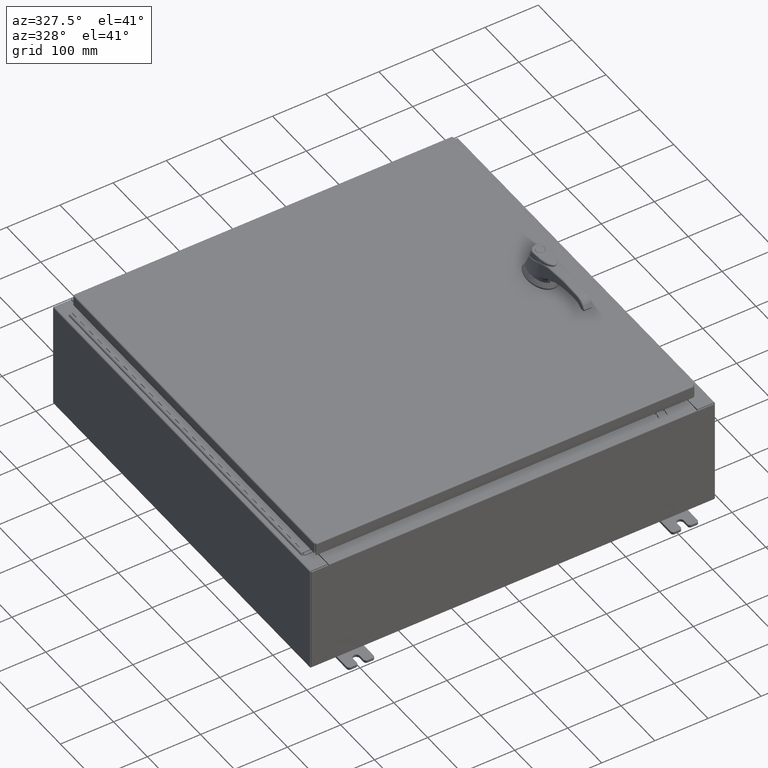
[diagram: clean part render]
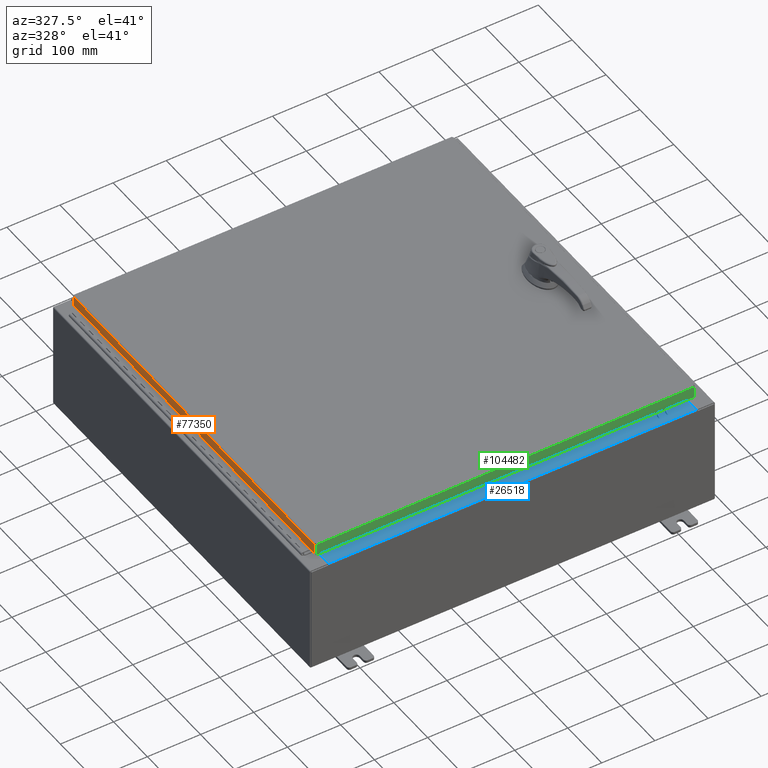
[diagram: same view with three faces highlighted in distinct colors, each labeled with its STEP entity id]
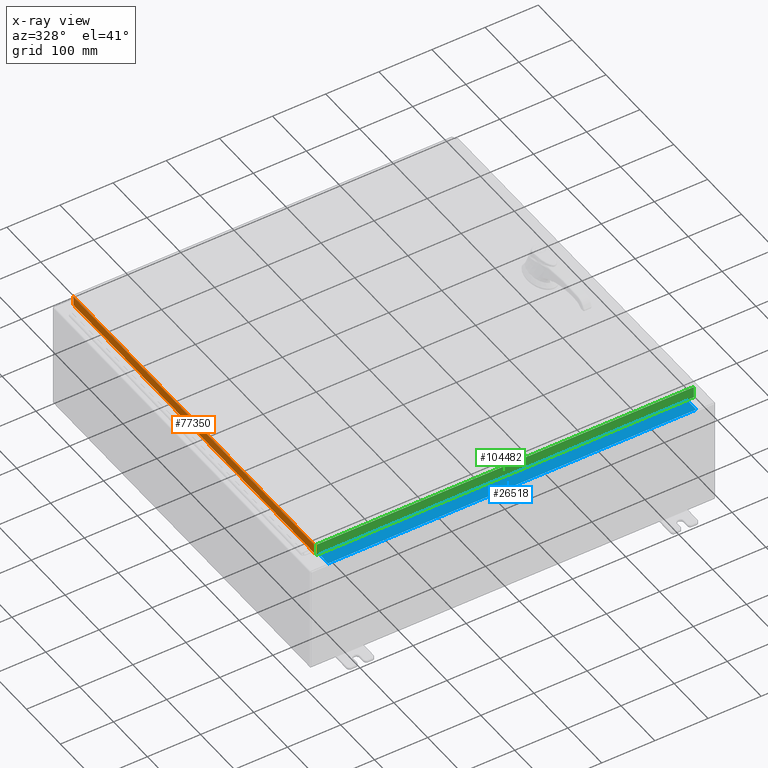
[diagram: x-ray of the same camera — body ghosted, the three highlighted faces saturated]
A machine part, auxiliary view with three faces highlighted in distinct colors.
The next image is the same camera in x-ray (body ghosted, the three faces saturated) — at least one of them is partly hidden behind the body in this view.
Their STEP definitions:

[orange] entity #77350 — the highlighted planar face has unit normal (1, 0, -0).
#2283 = DIRECTION ( 'NONE',  ( -3.034122441942816500E-015, 6.982962677686265900E-015, -1.000000000000000000 ) ) ;
#3085 = ORIENTED_EDGE ( 'NONE', *, *, #88620, .F. ) ;
#10621 = VERTEX_POINT ( 'NONE', #16916 ) ;
#16916 = CARTESIAN_POINT ( 'NONE',  ( -14.07799999999999900, 14.00515786437627100, -0.7949999999999962700 ) ) ;
#17682 = CARTESIAN_POINT ( 'NONE',  ( -14.07799999999999900, -14.09400000000000100, -0.7949999999999997100 ) ) ;
#22930 = DIRECTION ( 'NONE',  ( 1.000000000000000000, 3.675660434206576600E-031, -3.034122441942816500E-015 ) ) ;
#23512 = ORIENTED_EDGE ( 'NONE', *, *, #27104, .T. ) ;
#23730 = DIRECTION ( 'NONE',  ( 3.675660434206577100E-031, -1.000000000000000000, -1.083515668565077200E-045 ) ) ;
#23829 = VERTEX_POINT ( 'NONE', #101945 ) ;
#25649 = DIRECTION ( 'NONE',  ( -3.034122441942816500E-015, 6.982962677686265900E-015, -1.000000000000000000 ) ) ;
#27104 = EDGE_CURVE ( 'NONE', #23829, #10621, #106305, .T. ) ;
#41893 = ORIENTED_EDGE ( 'NONE', *, *, #81939, .F. ) ;
#46258 = VECTOR ( 'NONE', #81592, 39.37007874015748100 ) ;
#50116 = LINE ( 'NONE', #96373, #71594 ) ;
#50123 = EDGE_CURVE ( 'NONE', #23829, #88909, #50116, .T. ) ;
#56879 = CARTESIAN_POINT ( 'NONE',  ( -14.07799999999999800, 14.00515786437626400, 1.407726840557262800E-013 ) ) ;
#64139 = LINE ( 'NONE', #89550, #88465 ) ;
#71594 = VECTOR ( 'NONE', #23730, 39.37007874015748100 ) ;
#73315 = FACE_OUTER_BOUND ( 'NONE', #102826, .T. ) ;
#77350 = ADVANCED_FACE ( 'NONE', ( #73315 ), #78845, .F. ) ;
#78845 = PLANE ( 'NONE',  #101812 ) ;
#79240 = VECTOR ( 'NONE', #2283, 39.37007874015748100 ) ;
#81592 = DIRECTION ( 'NONE',  ( -4.379057701015054300E-047, 1.000000000000000000, 1.211441035930299800E-016 ) ) ;
#81939 = EDGE_CURVE ( 'NONE', #86335, #10621, #94800, .T. ) ;
#83821 = CARTESIAN_POINT ( 'NONE',  ( -14.07799999999999900, -14.00515786437626500, -0.7949999999999996000 ) ) ;
#84485 = ORIENTED_EDGE ( 'NONE', *, *, #50123, .F. ) ;
#86335 = VERTEX_POINT ( 'NONE', #83821 ) ;
#87992 = CARTESIAN_POINT ( 'NONE',  ( -14.07799999999999800, -5.174594759276017600E-030, 4.297518939368254200E-014 ) ) ;
#88465 = VECTOR ( 'NONE', #25649, 39.37007874015748100 ) ;
#88620 = EDGE_CURVE ( 'NONE', #88909, #86335, #64139, .T. ) ;
#88909 = VERTEX_POINT ( 'NONE', #101442 ) ;
#89550 = CARTESIAN_POINT ( 'NONE',  ( -14.07799999999999800, -14.00515786437627100, -0.07469999999999976700 ) ) ;
#94800 = LINE ( 'NONE', #17682, #46258 ) ;
#96373 = CARTESIAN_POINT ( 'NONE',  ( -14.07799999999999800, -14.09400000000000100, -0.08770000000000004200 ) ) ;
#97155 = DIRECTION ( 'NONE',  ( -3.034122441942816500E-015, 0.0000000000000000000, -1.000000000000000000 ) ) ;
#101442 = CARTESIAN_POINT ( 'NONE',  ( -14.07799999999999800, -14.00515786437626900, -0.08770000000000007000 ) ) ;
#101812 = AXIS2_PLACEMENT_3D ( 'NONE', #87992, #22930, #97155 ) ;
#101945 = CARTESIAN_POINT ( 'NONE',  ( -14.07799999999999800, 14.00515786437626400, -0.08770000000000004200 ) ) ;
#102826 = EDGE_LOOP ( 'NONE', ( #84485, #23512, #41893, #3085 ) ) ;
#106305 = LINE ( 'NONE', #56879, #79240 ) ;

[blue] entity #26518 — the highlighted planar face has unit normal (-0, -0, 1).
#2009 = VERTEX_POINT ( 'NONE', #61180 ) ;
#2768 = VECTOR ( 'NONE', #30646, 39.37007874015748100 ) ;
#3546 = DIRECTION ( 'NONE',  ( -1.000000000000000000, 2.003232330437526000E-017, -7.144290108027600900E-032 ) ) ;
#4506 = VECTOR ( 'NONE', #3546, 39.37007874015748100 ) ;
#15270 = VECTOR ( 'NONE', #82512, 39.37007874015748100 ) ;
#20437 = ORIENTED_EDGE ( 'NONE', *, *, #71595, .F. ) ;
#26518 = ADVANCED_FACE ( 'NONE', ( #35002 ), #84641, .T. ) ;
#26951 = CARTESIAN_POINT ( 'NONE',  ( 13.63720000000000400, -1.287299999999999900, 4.000000000000003600 ) ) ;
#30646 = DIRECTION ( 'NONE',  ( -0.0000000000000000000, 1.000000000000000000, -3.566381192773190000E-015 ) ) ;
#35002 = FACE_OUTER_BOUND ( 'NONE', #84135, .T. ) ;
#36964 = CARTESIAN_POINT ( 'NONE',  ( 13.63720000000000400, -1.300299999999999800, 4.000000000000004400 ) ) ;
#39108 = DIRECTION ( 'NONE',  ( 0.0000000000000000000, 3.566381192773190000E-015, 1.000000000000000000 ) ) ;
#39461 = CARTESIAN_POINT ( 'NONE',  ( -13.63719999999999800, -0.07469999999999973900, 4.000000000000000000 ) ) ;
#44639 = VECTOR ( 'NONE', #90819, 39.37007874015748100 ) ;
#48396 = LINE ( 'NONE', #39461, #2768 ) ;
#48434 = EDGE_CURVE ( 'NONE', #2009, #70664, #63161, .T. ) ;
#49251 = CARTESIAN_POINT ( 'NONE',  ( -13.63719999999999800, -0.08770000000000000000, 4.000000000000000000 ) ) ;
#54140 = VERTEX_POINT ( 'NONE', #49251 ) ;
#56010 = ORIENTED_EDGE ( 'NONE', *, *, #105440, .F. ) ;
#61180 = CARTESIAN_POINT ( 'NONE',  ( 13.63720000000000400, -1.287299999999999900, 4.000000000000004400 ) ) ;
#62695 = LINE ( 'NONE', #112893, #4506 ) ;
#63161 = LINE ( 'NONE', #26951, #44639 ) ;
#63172 = CARTESIAN_POINT ( 'NONE',  ( 13.63720000000000400, -0.08769999999999965300, 4.000000000000000000 ) ) ;
#70664 = VERTEX_POINT ( 'NONE', #89717 ) ;
#71595 = EDGE_CURVE ( 'NONE', #100318, #2009, #109542, .T. ) ;
#76914 = AXIS2_PLACEMENT_3D ( 'NONE', #93762, #39108, #102937 ) ;
#82512 = DIRECTION ( 'NONE',  ( -0.0000000000000000000, -1.000000000000000000, 3.566381192773190000E-015 ) ) ;
#84135 = EDGE_LOOP ( 'NONE', ( #56010, #104744, #20437, #108628 ) ) ;
#84641 = PLANE ( 'NONE',  #76914 ) ;
#89717 = CARTESIAN_POINT ( 'NONE',  ( -13.63719999999999800, -1.287299999999999200, 4.000000000000004400 ) ) ;
#90819 = DIRECTION ( 'NONE',  ( -1.000000000000000000, 0.0000000000000000000, 0.0000000000000000000 ) ) ;
#93762 = CARTESIAN_POINT ( 'NONE',  ( 0.0000000000000000000, 1.425992975200418500E-014, 4.000000000000000000 ) ) ;
#100318 = VERTEX_POINT ( 'NONE', #63172 ) ;
#102937 = DIRECTION ( 'NONE',  ( 0.0000000000000000000, -1.000000000000000000, 3.566381192773190000E-015 ) ) ;
#104744 = ORIENTED_EDGE ( 'NONE', *, *, #48434, .F. ) ;
#105440 = EDGE_CURVE ( 'NONE', #70664, #54140, #48396, .T. ) ;
#105461 = EDGE_CURVE ( 'NONE', #100318, #54140, #62695, .T. ) ;
#108628 = ORIENTED_EDGE ( 'NONE', *, *, #105461, .T. ) ;
#109542 = LINE ( 'NONE', #36964, #15270 ) ;
#112893 = CARTESIAN_POINT ( 'NONE',  ( -1.756834753793995900E-018, -0.08770000000000000000, 4.000000000000000900 ) ) ;

[green] entity #104482 — the highlighted planar face has unit normal (0, 1, -0).
#637 = DIRECTION ( 'NONE',  ( 0.0000000000000000000, -2.532419924601866100E-015, -1.000000000000000000 ) ) ;
#4354 = CARTESIAN_POINT ( 'NONE',  ( 13.98915786437624000, -14.09400000000000500, -0.08769999999999898700 ) ) ;
#14527 = VECTOR ( 'NONE', #37307, 39.37007874015748100 ) ;
#18918 = DIRECTION ( 'NONE',  ( -1.000000000000000000, 7.762034361881697200E-017, 1.261330583805776000E-016 ) ) ;
#18995 = EDGE_CURVE ( 'NONE', #79901, #88486, #92540, .T. ) ;
#25901 = CARTESIAN_POINT ( 'NONE',  ( -13.98915786437626700, -14.09400000000000300, 3.595274007335028700E-014 ) ) ;
#31514 = EDGE_CURVE ( 'NONE', #79818, #79901, #87380, .T. ) ;
#36895 = ORIENTED_EDGE ( 'NONE', *, *, #37686, .T. ) ;
#37307 = DIRECTION ( 'NONE',  ( 1.000000000000000000, -7.762034361881684800E-017, -7.762034361881695900E-017 ) ) ;
#37686 = EDGE_CURVE ( 'NONE', #79818, #96589, #67920, .T. ) ;
#39088 = ORIENTED_EDGE ( 'NONE', *, *, #31514, .F. ) ;
#42045 = CARTESIAN_POINT ( 'NONE',  ( 13.98915786437627100, -14.09400000000000800, -0.9376999999999997600 ) ) ;
#43635 = VECTOR ( 'NONE', #53423, 39.37007874015748100 ) ;
#45532 = ORIENTED_EDGE ( 'NONE', *, *, #56315, .F. ) ;
#46016 = DIRECTION ( 'NONE',  ( 7.762034361881665100E-017, 1.000000000000000000, -2.532419924601866100E-015 ) ) ;
#48125 = AXIS2_PLACEMENT_3D ( 'NONE', #82412, #46016, #109889 ) ;
#53423 = DIRECTION ( 'NONE',  ( 0.0000000000000000000, -2.532419924601866100E-015, -1.000000000000000000 ) ) ;
#56315 = EDGE_CURVE ( 'NONE', #88486, #96589, #82420, .T. ) ;
#58676 = CARTESIAN_POINT ( 'NONE',  ( -13.98915786437626900, -14.09400000000000500, -0.9376999999999962000 ) ) ;
#64413 = CARTESIAN_POINT ( 'NONE',  ( 13.98915786437627100, -14.09400000000000500, -0.07469999999999980800 ) ) ;
#65301 = ORIENTED_EDGE ( 'NONE', *, *, #18995, .F. ) ;
#67920 = LINE ( 'NONE', #25901, #43635 ) ;
#68266 = VECTOR ( 'NONE', #637, 39.37007874015748100 ) ;
#79818 = VERTEX_POINT ( 'NONE', #85386 ) ;
#79901 = VERTEX_POINT ( 'NONE', #4354 ) ;
#82412 = CARTESIAN_POINT ( 'NONE',  ( -1.093981122963602000E-015, -14.09400000000000300, 3.595274007335028700E-014 ) ) ;
#82420 = LINE ( 'NONE', #109913, #98018 ) ;
#85386 = CARTESIAN_POINT ( 'NONE',  ( -13.98915786437626900, -14.09400000000000300, -0.08769999999999789100 ) ) ;
#85651 = EDGE_LOOP ( 'NONE', ( #39088, #36895, #45532, #65301 ) ) ;
#87380 = LINE ( 'NONE', #101146, #14527 ) ;
#88486 = VERTEX_POINT ( 'NONE', #42045 ) ;
#92540 = LINE ( 'NONE', #64413, #68266 ) ;
#96589 = VERTEX_POINT ( 'NONE', #58676 ) ;
#98018 = VECTOR ( 'NONE', #18918, 39.37007874015748100 ) ;
#100699 = PLANE ( 'NONE',  #48125 ) ;
#101146 = CARTESIAN_POINT ( 'NONE',  ( 14.07800000000000300, -14.09400000000000500, -0.08770000000000008300 ) ) ;
#101213 = FACE_OUTER_BOUND ( 'NONE', #85651, .T. ) ;
#104482 = ADVANCED_FACE ( 'NONE', ( #101213 ), #100699, .F. ) ;
#109889 = DIRECTION ( 'NONE',  ( 0.0000000000000000000, 2.532419924601866100E-015, 1.000000000000000000 ) ) ;
#109913 = CARTESIAN_POINT ( 'NONE',  ( 14.07800000000000300, -14.09400000000000800, -0.9376999999999997600 ) ) ;